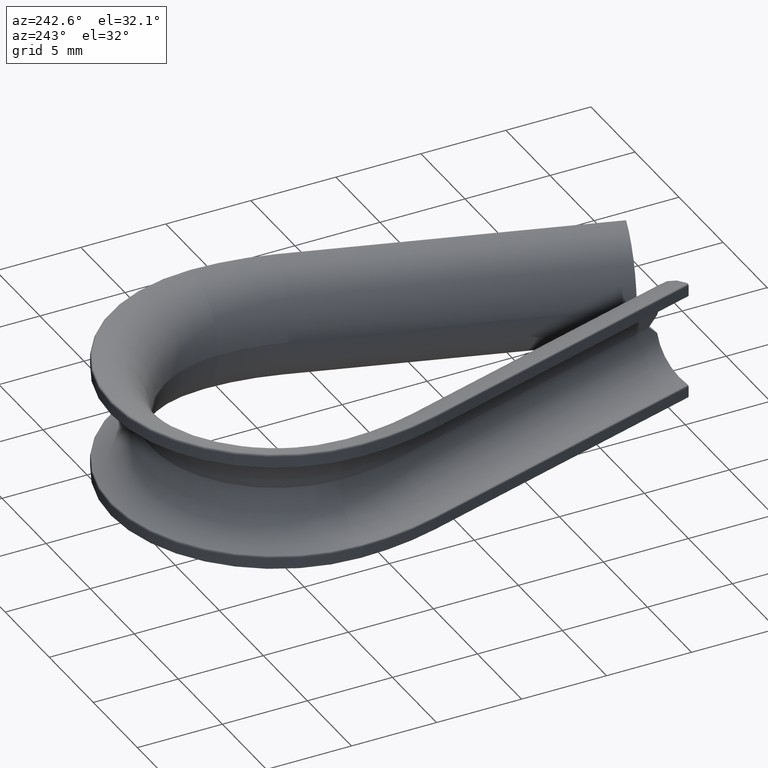
[diagram: clean part render]
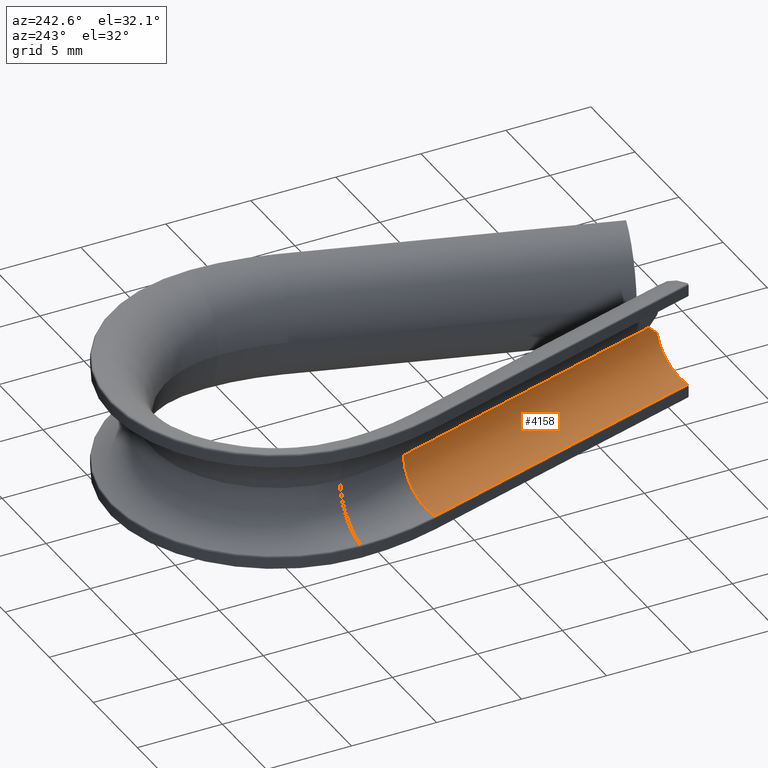
[diagram: same view with one face highlighted and labeled with its STEP entity id]
A machine part, auxiliary view. The second image highlights one B-rep face of the part: STEP entity #4158.
In plain terms, the highlighted cylindrical surface (partial cylindrical patch) has radius 2.75 mm, axis along (0.2934, -0.956, 0).
Its self-contained STEP definition (entity closure, byte-faithful):
#38 = DIRECTION ( 'NONE',  ( 0.2933985330073347600, -0.9559902200488998900, 0.0000000000000000000 ) ) ;
#123 = DIRECTION ( 'NONE',  ( 0.2933985330073349800, -0.9559902200488997700, 0.0000000000000000000 ) ) ;
#869 = AXIS2_PLACEMENT_3D ( 'NONE', #14287, #123, #6079 ) ;
#1066 = VERTEX_POINT ( 'NONE', #5232 ) ;
#1150 = CARTESIAN_POINT ( 'NONE',  ( -1.372000199888292200, 0.1146006513026807700, -0.1870641741099376400 ) ) ;
#1531 = LINE ( 'NONE', #2418, #13056 ) ;
#2006 = VERTEX_POINT ( 'NONE', #14791 ) ;
#2206 = DIRECTION ( 'NONE',  ( 0.0000000000000000000, 0.0000000000000000000, -1.000000000000000000 ) ) ;
#2418 = CARTESIAN_POINT ( 'NONE',  ( -8.906537125209112600, 16.77165101016600700, -2.715503860950406100 ) ) ;
#2448 =( BOUNDED_CURVE ( )  B_SPLINE_CURVE ( 3, ( #12938, #3336, #1150, #8095 ),
 .UNSPECIFIED., .F., .F. ) 
 B_SPLINE_CURVE_WITH_KNOTS ( ( 4, 4 ),
 ( 1.079265851811082500, 1.282982800591112400 ),
 .UNSPECIFIED. ) 
 CURVE ( )  GEOMETRIC_REPRESENTATION_ITEM ( )  RATIONAL_B_SPLINE_CURVE ( ( 1.000000000000000000, 0.9965446061342101400, 0.9965446061342101400, 1.000000000000000000 ) ) 
 REPRESENTATION_ITEM ( '' )  );
#2703 = DIRECTION ( 'NONE',  ( 0.2933985330073349800, -0.9559902200488996600, 0.0000000000000000000 ) ) ;
#2715 = DIRECTION ( 'NONE',  ( 0.0000000000000000000, 0.0000000000000000000, -1.000000000000000000 ) ) ;
#2992 = EDGE_CURVE ( 'NONE', #2006, #11942, #1531, .T. ) ;
#3336 = CARTESIAN_POINT ( 'NONE',  ( -1.335291856035582000, -0.06983775573632515500, -0.3731587776202824900 ) ) ;
#3610 = EDGE_CURVE ( 'NONE', #1066, #11628, #2448, .T. ) ;
#3802 = EDGE_CURVE ( 'NONE', #11942, #1066, #8447, .T. ) ;
#3819 = ORIENTED_EDGE ( 'NONE', *, *, #2992, .T. ) ;
#4119 = CARTESIAN_POINT ( 'NONE',  ( -6.692665036674821300, 17.45110024449877900, 0.0000000000000000000 ) ) ;
#4158 = ADVANCED_FACE ( 'NONE', ( #11396 ), #6567, .F. ) ;
#4313 = CIRCLE ( 'NONE', #11903, 2.750000000000000000 ) ;
#4692 = CARTESIAN_POINT ( 'NONE',  ( -9.321638141809295100, 16.64425427872861000, 0.0000000000000000000 ) ) ;
#4767 = ORIENTED_EDGE ( 'NONE', *, *, #11607, .F. ) ;
#5232 = CARTESIAN_POINT ( 'NONE',  ( -1.319155749554864700, -0.2514032990961211400, -0.5563547200767563500 ) ) ;
#6079 = DIRECTION ( 'NONE',  ( 0.9559902200488995500, 0.2933985330073354800, 0.0000000000000000000 ) ) ;
#6567 = CYLINDRICAL_SURFACE ( 'NONE', #869, 2.750000000000000000 ) ;
#7087 = EDGE_CURVE ( 'NONE', #2006, #9010, #4313, .T. ) ;
#8066 = ORIENTED_EDGE ( 'NONE', *, *, #7087, .F. ) ;
#8095 = CARTESIAN_POINT ( 'NONE',  ( -1.428900255754480300, 0.3000000000000007700, -4.814824860968089600E-032 ) ) ;
#8447 = CIRCLE ( 'NONE', #9293, 2.750000000000000000 ) ;
#8534 = CARTESIAN_POINT ( 'NONE',  ( -3.478664264573414900, -0.9141680607386424300, -2.715503860950406100 ) ) ;
#8571 = ORIENTED_EDGE ( 'NONE', *, *, #3610, .T. ) ;
#9010 = VERTEX_POINT ( 'NONE', #4119 ) ;
#9293 = AXIS2_PLACEMENT_3D ( 'NONE', #10609, #38, #2715 ) ;
#9298 = DIRECTION ( 'NONE',  ( 0.2933985330073347600, -0.9559902200488998900, 0.0000000000000000000 ) ) ;
#10068 = LINE ( 'NONE', #14771, #12858 ) ;
#10609 = CARTESIAN_POINT ( 'NONE',  ( -3.893765281173597000, -1.041564792176038300, 0.0000000000000000000 ) ) ;
#11195 = EDGE_LOOP ( 'NONE', ( #4767, #8066, #3819, #13863, #8571 ) ) ;
#11396 = FACE_OUTER_BOUND ( 'NONE', #11195, .T. ) ;
#11607 = EDGE_CURVE ( 'NONE', #9010, #11628, #10068, .T. ) ;
#11628 = VERTEX_POINT ( 'NONE', #13449 ) ;
#11820 = DIRECTION ( 'NONE',  ( 0.2933985330073349800, -0.9559902200488996600, 0.0000000000000000000 ) ) ;
#11903 = AXIS2_PLACEMENT_3D ( 'NONE', #4692, #9298, #2206 ) ;
#11942 = VERTEX_POINT ( 'NONE', #8534 ) ;
#12858 = VECTOR ( 'NONE', #2703, 1000.000000000000100 ) ;
#12938 = CARTESIAN_POINT ( 'NONE',  ( -1.319155749554864700, -0.2514032990961211400, -0.5563547200767563500 ) ) ;
#13056 = VECTOR ( 'NONE', #11820, 1000.000000000000100 ) ;
#13449 = CARTESIAN_POINT ( 'NONE',  ( -1.428900255754480300, 0.3000000000000007700, -4.814824860968089600E-032 ) ) ;
#13863 = ORIENTED_EDGE ( 'NONE', *, *, #3802, .T. ) ;
#14287 = CARTESIAN_POINT ( 'NONE',  ( -9.321638141809295100, 16.64425427872861000, 0.0000000000000000000 ) ) ;
#14771 = CARTESIAN_POINT ( 'NONE',  ( -6.692665036674821300, 17.45110024449878200, 0.0000000000000000000 ) ) ;
#14791 = CARTESIAN_POINT ( 'NONE',  ( -8.906537125210066500, 16.77165101016571600, -2.715503860950734300 ) ) ;